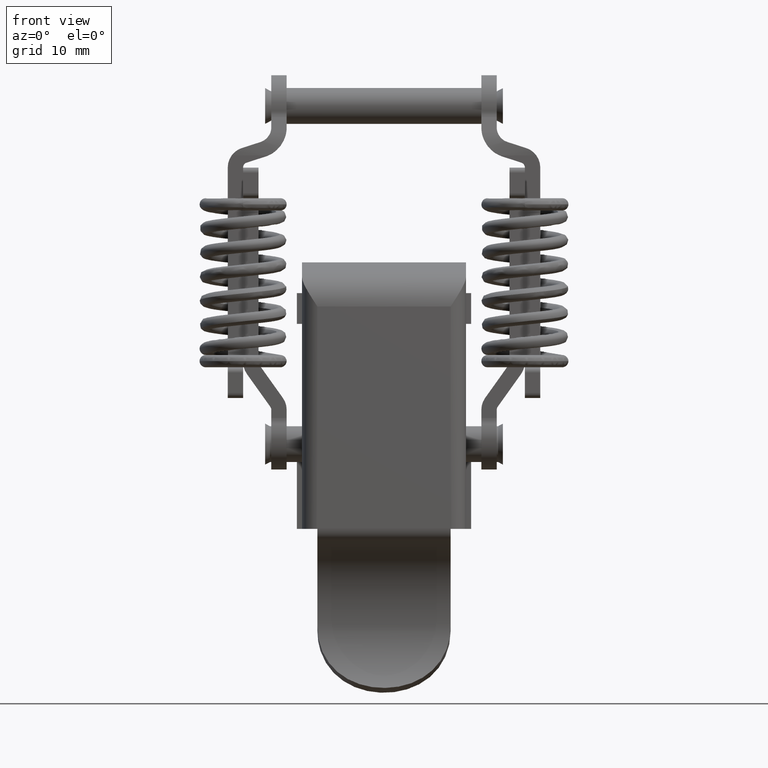
[diagram: clean part render]
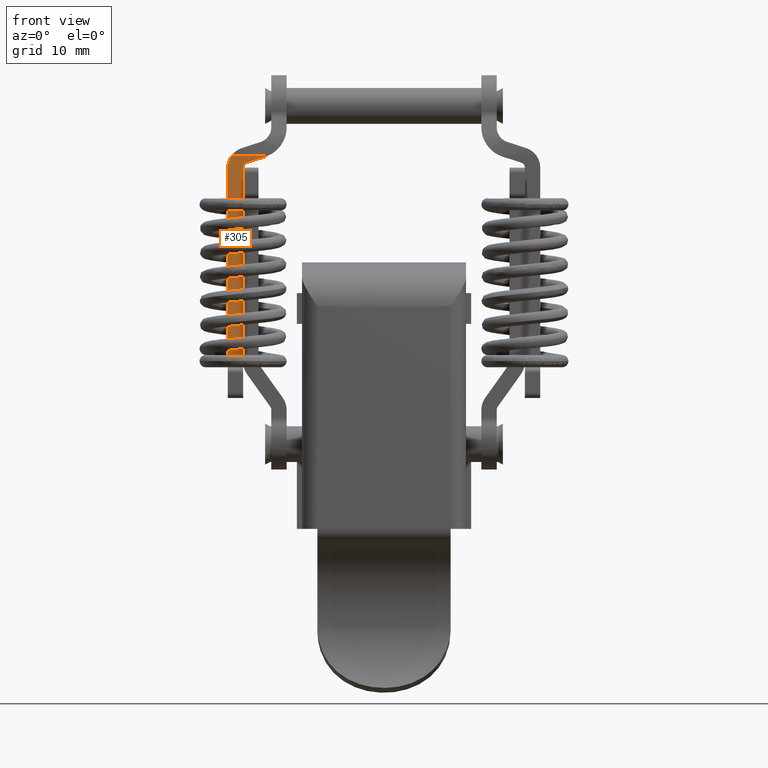
[diagram: same view with one face highlighted and labeled with its STEP entity id]
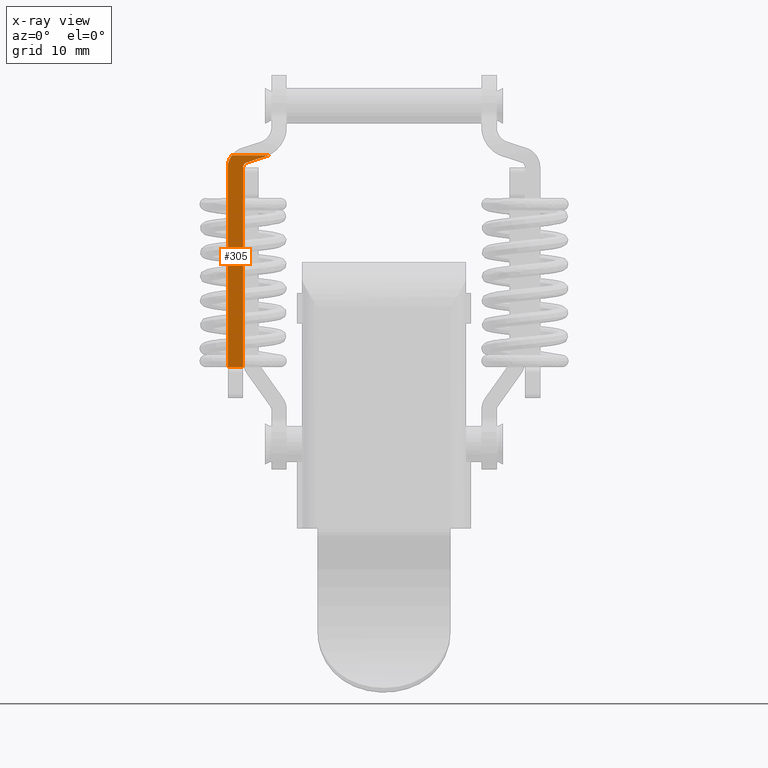
[diagram: x-ray of the same camera — body ghosted, the highlighted face saturated]
A machine part, front view. The second image highlights one B-rep face of the part: STEP entity #305.
The next image is the same camera in x-ray: the body ghosted, the highlighted face saturated — about 0% of this face is hidden behind the body in this view.
In plain terms, the highlighted planar face has unit normal (0, -1, -0).
Its self-contained STEP definition (entity closure, byte-faithful):
#305=ADVANCED_FACE('',(#1191),#1190,.T.);
#1190=PLANE('',#3064);
#1191=FACE_OUTER_BOUND('',#3065,.T.);
#3061=CARTESIAN_POINT('',(3.99998908001E+00,-4.04726058251E+00,-2.75917645721E+00));
#3062=DIRECTION('',(1.00000000000E+00,0.00000000000E+00,1.03916659467E-12));
#3063=DIRECTION('',(1.03916659467E-12,0.00000000000E+00,-1.00000000000E+00));
#3064=AXIS2_PLACEMENT_3D('',#3061,#3062,#3063);
#3065=EDGE_LOOP('',(#6610,#6611,#6612,#6613,#6614,#6615,#6616,#6617));
#6610=ORIENTED_EDGE('',*,*,#7590,.T.);
#6611=ORIENTED_EDGE('',*,*,#7629,.F.);
#6612=ORIENTED_EDGE('',*,*,#7627,.F.);
#6613=ORIENTED_EDGE('',*,*,#7630,.T.);
#6614=ORIENTED_EDGE('',*,*,#7631,.F.);
#6615=ORIENTED_EDGE('',*,*,#7632,.T.);
#6616=ORIENTED_EDGE('',*,*,#7583,.T.);
#6617=ORIENTED_EDGE('',*,*,#7595,.T.);
#7583=EDGE_CURVE('',#9302,#9295,#9303,.T.);
#7590=EDGE_CURVE('',#9349,#9342,#9350,.T.);
#7595=EDGE_CURVE('',#9295,#9349,#9382,.T.);
#7627=EDGE_CURVE('',#9590,#9597,#9598,.T.);
#7629=EDGE_CURVE('',#9597,#9342,#9610,.T.);
#7630=EDGE_CURVE('',#9590,#9616,#9617,.T.);
#7631=EDGE_CURVE('',#9623,#9616,#9624,.T.);
#7632=EDGE_CURVE('',#9623,#9302,#9630,.T.);
#9295=VERTEX_POINT('',#12852);
#9302=VERTEX_POINT('',#12863);
#9303=CIRCLE('',#12867,3.00000000000E+00);
#9342=VERTEX_POINT('',#12890);
#9349=VERTEX_POINT('',#12894);
#9350=CIRCLE('',#12898,2.00000000000E+00);
#9382=LINE('',#12916,#12917);
#9590=VERTEX_POINT('',#13044);
#9597=VERTEX_POINT('',#13048);
#9598=LINE('',#13049,#13050);
#9610=LINE('',#13055,#13056);
#9616=VERTEX_POINT('',#13058);
#9617=LINE('',#13059,#13060);
#9623=VERTEX_POINT('',#13062);
#9624=CIRCLE('',#13066,5.00000000000E-01);
#9630=LINE('',#13067,#13068);
#12852=CARTESIAN_POINT('',(3.99998908001E+00,3.22605825138E-01,-4.82652405201E+00));
#12863=CARTESIAN_POINT('',(3.99998908001E+00,2.07878624264E-02,-4.94215262162E+00));
#12864=CARTESIAN_POINT('',(3.99998908001E+00,-9.00000000000E-01,-2.08695565601E+00));
#12865=DIRECTION('',(1.00000000000E+00,-5.74424064097E-14,1.17911117369E-12));
#12866=DIRECTION('',(-1.13982897195E-12,-3.06929287475E-01,9.51732321869E-01));
#12867=AXIS2_PLACEMENT_3D('',#12864,#12865,#12866);
#12890=CARTESIAN_POINT('',(3.99998908001E+00,-3.65000000000E+00,-6.00633180821E+00));
#12894=CARTESIAN_POINT('',(3.99998908001E+00,-3.26494695220E+00,-4.82652405201E+00));
#12895=CARTESIAN_POINT('',(3.99998908001E+00,-1.65000000000E+00,-6.00633180821E+00));
#12896=DIRECTION('',(1.00000000000E+00,-2.94393140169E-14,1.04601662660E-12));
#12897=DIRECTION('',(6.40820729814E-13,8.07473476099E-01,-5.89903878100E-01));
#12898=AXIS2_PLACEMENT_3D('',#12895,#12896,#12897);
#12916=CARTESIAN_POINT('',(3.99998908001E+00,3.22605825138E-01,-4.82652405201E+00));
#12917=VECTOR('',#12918,3.58755277734E+00);
#12918=DIRECTION('',(0.00000000000E+00,-1.00000000000E+00,0.00000000000E+00));
#13044=CARTESIAN_POINT('',(3.99998908003E+00,-2.15000000000E+00,-2.55000000000E+01));
#13048=CARTESIAN_POINT('',(3.99998908003E+00,-3.65000000000E+00,-2.55000000000E+01));
#13049=CARTESIAN_POINT('',(3.99998908003E+00,-2.15000000000E+00,-2.55000000000E+01));
#13050=VECTOR('',#13051,1.50000000000E+00);
#13051=DIRECTION('',(0.00000000000E+00,-1.00000000000E+00,0.00000000000E+00));
#13055=CARTESIAN_POINT('',(3.99998908003E+00,-3.65000000000E+00,-2.55000000000E+01));
#13056=VECTOR('',#13057,1.94936681918E+01);
#13057=DIRECTION('',(-1.03880006989E-12,0.00000000000E+00,1.00000000000E+00));
#13058=CARTESIAN_POINT('',(3.99998908001E+00,-2.15000000000E+00,-6.00633180821E+00));
#13059=CARTESIAN_POINT('',(3.99998908003E+00,-2.15000000000E+00,-2.55000000000E+01));
#13060=VECTOR('',#13061,1.94936681918E+01);
#13061=DIRECTION('',(-1.03880006989E-12,0.00000000000E+00,1.00000000000E+00));
#13062=CARTESIAN_POINT('',(3.99998908001E+00,-1.80346464374E+00,-5.53046564728E+00));
#13063=CARTESIAN_POINT('',(3.99998908001E+00,-1.65000000000E+00,-6.00633180821E+00));
#13064=DIRECTION('',(1.00000000000E+00,-1.88610845251E-14,1.04285995306E-12));
#13065=DIRECTION('',(9.98312543743E-13,3.06929287475E-01,-9.51732321869E-01));
#13066=AXIS2_PLACEMENT_3D('',#13063,#13064,#13065);
#13067=CARTESIAN_POINT('',(3.99998908001E+00,-1.80346464374E+00,-5.53046564728E+00));
#13068=VECTOR('',#13069,1.91677057114E+00);
#13069=DIRECTION('',(-3.18336781418E-13,9.51732321869E-01,3.06929287475E-01));